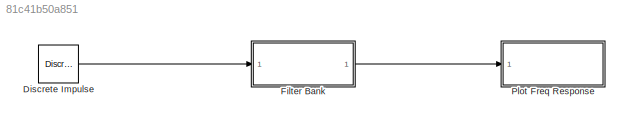
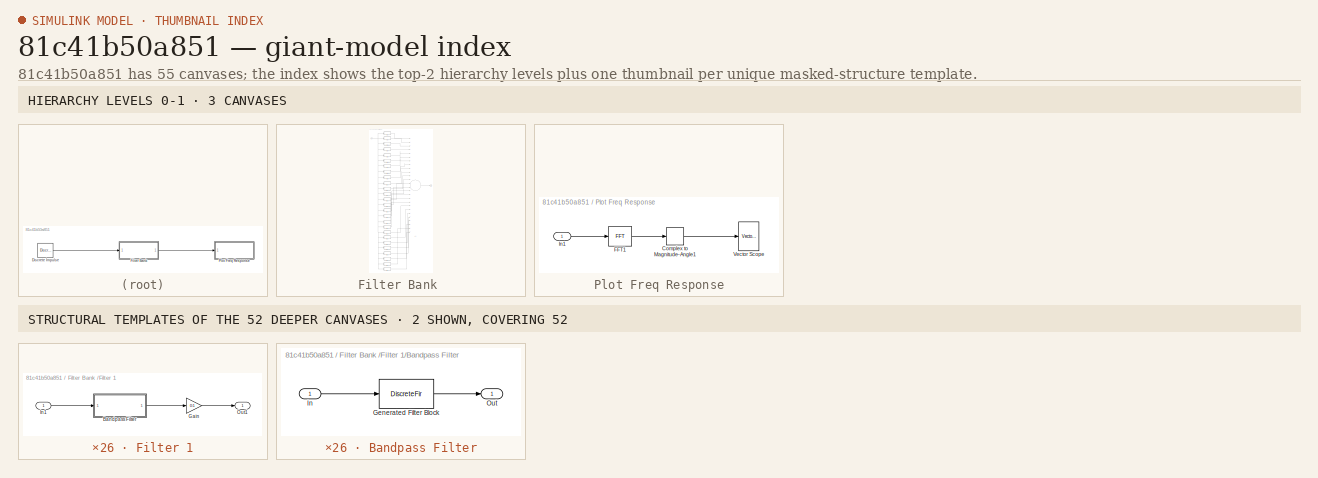
[diagram: thumbnail index - top-2 hierarchy levels (3 canvases) + 2 structural-template representatives of the remaining 52 canvases]
MODEL slx_81c41b50a851
KIND model
CONFIG AbsTol = auto
CONFIG EnableMultiTasking = off
CONFIG FixedStep = auto
CONFIG MaxStep = auto
CONFIG MinStep = auto
CONFIG RelTol = 1e-3
CONFIG SampleTimeConstraint = Unconstrained
CONFIG Solver = VariableStepAuto
CONFIG SolverName = VariableStepAuto
CONFIG StartTime = 0.0
CONFIG StopTime = 0.001
BLOCK [Reference] Discrete Impulse  REF=dspsrcs4/Discrete 
Impulse
  Ports = [0, 1]
  SourceBlock = dspsrcs4/Discrete \nImpulse
  SourceProductBaseCode = DS
  SourceProductName = DSP System Toolbox
  SourceType = Discrete Impulse
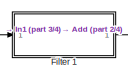
[diagram: Filter Bank  - part 1/4, top left region]
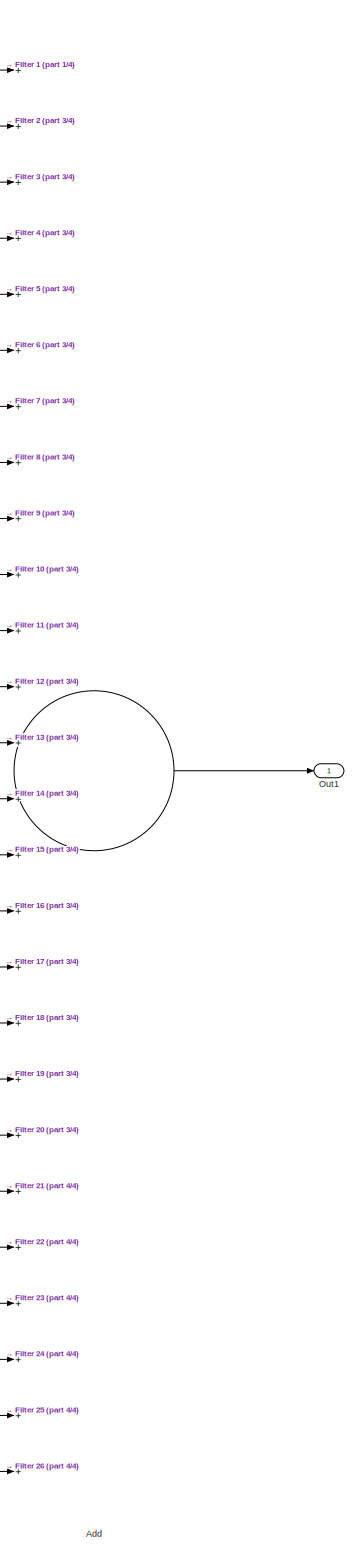
[diagram: Filter Bank  - part 2/4, middle right region]
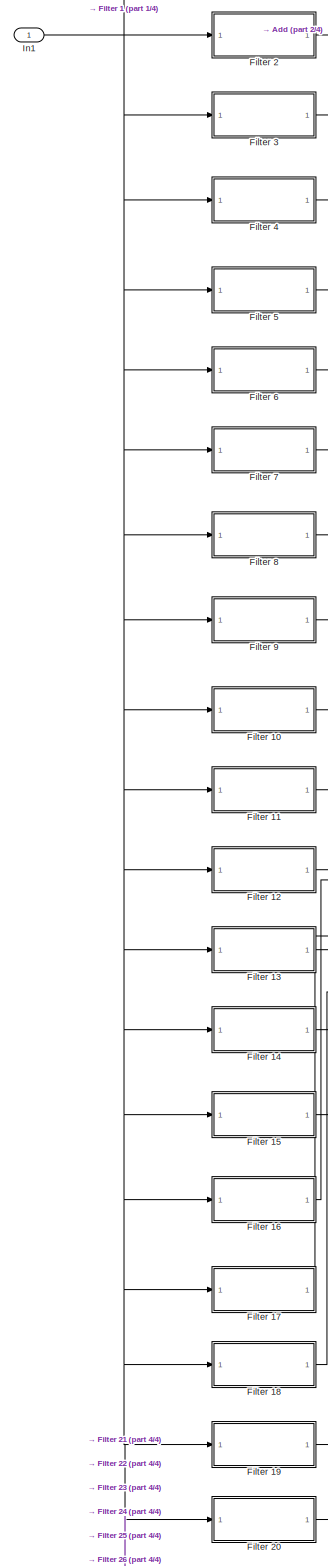
[diagram: Filter Bank  - part 3/4, left side, full height]
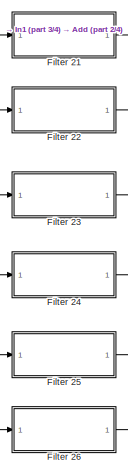
[diagram: Filter Bank  - part 4/4, bottom left region]
BLOCK [SubSystem] Filter Bank 
  Ports = [1, 1]
  RequestExecContextInheritance = off
BLOCK [Sum] Filter Bank /Add
  InputSameDT = off
  Inputs = ++++++++++++++++++++++++++
  OutDataTypeStr = Inherit: Inherit via internal rule
  Ports = [26, 1]
  SaturateOnIntegerOverflow = off
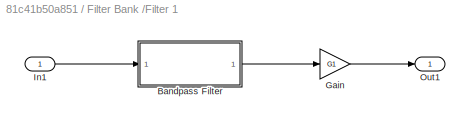
BLOCK [SubSystem] Filter Bank /Filter 1
  Ports = [1, 1]
  RequestExecContextInheritance = off
BLOCK [SubSystem] Filter Bank /Filter 1/Bandpass Filter
  CopyFcn = fdesignblkfcn(gcbh, {'CopyFcn'});
  DialogController = fdesignblkfcn
  InitFcn = fdesignblkfcn(gcbh, {'InitFcn'});
  Ports = [1, 1]
  RequestExecContextInheritance = off
  UserDataPersistent = on
BLOCK [DiscreteFir] Filter Bank /Filter 1/Bandpass Filter/Generated Filter Block
  Coefficients = [-0.0647962604943040366 0.00107831393459822955 0.00108336569226730184 0.00105909967977386998 0.00106454495764371493 0.00103988940155785858 0.00104607654880593814 0.0010205946674994304 0.00102804880577073154 0.00100100405731116948 0.00101065843472324113 0.000980517346474557572 0.000994414171233123922 0.000956754191758266148 0.00098108359285199731 0.00090624851589586608 0.0010235520260335057 0.00099...<+146477ch>
  InputPortMap = u0
  InputProcessing = Columns as channels (frame based)
  OutputPortMap = o0
  Ports = [1, 1]
  Tag = BlockMethodSubSystem
BLOCK [Inport] Filter Bank /Filter 1/Bandpass Filter/In
  IconDisplay = Port number
BLOCK [Outport] Filter Bank /Filter 1/Bandpass Filter/Out
  IconDisplay = Port number
BLOCK [Gain] Filter Bank /Filter 1/Gain
  Gain = G1
  OutDataTypeStr = Inherit: Inherit via internal rule
  ParamDataTypeStr = Inherit: Inherit via internal rule
  SaturateOnIntegerOverflow = off
BLOCK [Inport] Filter Bank /Filter 1/In1
  IconDisplay = Port number
BLOCK [Outport] Filter Bank /Filter 1/Out1
  IconDisplay = Port number
BLOCK [SubSystem] Filter Bank /Filter 10
  Ports = [1, 1]
  RequestExecContextInheritance = off
BLOCK [SubSystem] Filter Bank /Filter 10/Bandpass Filter
  CopyFcn = fdesignblkfcn(gcbh, {'CopyFcn'});
  DialogController = fdesignblkfcn
  InitFcn = fdesignblkfcn(gcbh, {'InitFcn'});
  Ports = [1, 1]
  RequestExecContextInheritance = off
  UserDataPersistent = on
BLOCK [DiscreteFir] Filter Bank /Filter 10/Bandpass Filter/Generated Filter Block
  Coefficients = [0.00662812537303859167 -0.00253108234462871753 -0.00208721062807712366 -0.00171574914897338888 -0.00140675910706401048 -0.00114798559534785957 -0.000933159914872140096 -0.000753058112247605984 -0.000604004080067758954 -0.000478861448085449789 -0.000375807632251681269 -0.000289108672916071657 -0.000218240802168969783 -0.000158451510434598415 -0.000110165299775321387 -6.92451099451374586e-05 -3.683...<+26784ch>
  InputPortMap = u0
  InputProcessing = Columns as channels (frame based)
  OutputPortMap = o0
  Ports = [1, 1]
  Tag = BlockMethodSubSystem
BLOCK [Inport] Filter Bank /Filter 10/Bandpass Filter/In
  IconDisplay = Port number
BLOCK [Outport] Filter Bank /Filter 10/Bandpass Filter/Out
  IconDisplay = Port number
BLOCK [Gain] Filter Bank /Filter 10/Gain
  Gain = G10
  OutDataTypeStr = Inherit: Inherit via internal rule
  ParamDataTypeStr = Inherit: Inherit via internal rule
  SaturateOnIntegerOverflow = off
BLOCK [Inport] Filter Bank /Filter 10/In1
  IconDisplay = Port number
BLOCK [Outport] Filter Bank /Filter 10/Out1
  IconDisplay = Port number
BLOCK [SubSystem] Filter Bank /Filter 11
  Ports = [1, 1]
  RequestExecContextInheritance = off
BLOCK [SubSystem] Filter Bank /Filter 11/Bandpass Filter
  CopyFcn = fdesignblkfcn(gcbh, {'CopyFcn'});
  DialogController = fdesignblkfcn
  InitFcn = fdesignblkfcn(gcbh, {'InitFcn'});
  Ports = [1, 1]
  RequestExecContextInheritance = off
  UserDataPersistent = on
BLOCK [DiscreteFir] Filter Bank /Filter 11/Bandpass Filter/Generated Filter Block
  Coefficients = [-0.00093292062482798054 0.00032075404477062018 0.000272040246961740531 0.000232034219203378452 0.00019895125114672508 0.00017184669813421501 0.000149402672587105128 0.000131062982912772536 0.000115827949227235863 0.000103414149419073139 9.30296784137371542e-05 8.45857051551089233e-05 7.74315258891509903e-05 7.16156197630829201e-05 6.65769299920451459e-05 6.24669752945851046e-05 5.8779583393656416...<+29784ch>
  InputPortMap = u0
  InputProcessing = Columns as channels (frame based)
  OutputPortMap = o0
  Ports = [1, 1]
  Tag = BlockMethodSubSystem
BLOCK [Inport] Filter Bank /Filter 11/Bandpass Filter/In
  IconDisplay = Port number
BLOCK [Outport] Filter Bank /Filter 11/Bandpass Filter/Out
  IconDisplay = Port number
BLOCK [Gain] Filter Bank /Filter 11/Gain
  Gain = G11
  OutDataTypeStr = Inherit: Inherit via internal rule
  ParamDataTypeStr = Inherit: Inherit via internal rule
  SaturateOnIntegerOverflow = off
BLOCK [Inport] Filter Bank /Filter 11/In1
  IconDisplay = Port number
BLOCK [Outport] Filter Bank /Filter 11/Out1
  IconDisplay = Port number
BLOCK [SubSystem] Filter Bank /Filter 12
  Ports = [1, 1]
  RequestExecContextInheritance = off
BLOCK [SubSystem] Filter Bank /Filter 12/Bandpass Filter
  CopyFcn = fdesignblkfcn(gcbh, {'CopyFcn'});
  DialogController = fdesignblkfcn
  InitFcn = fdesignblkfcn(gcbh, {'InitFcn'});
  Ports = [1, 1]
  RequestExecContextInheritance = off
  UserDataPersistent = on
BLOCK [DiscreteFir] Filter Bank /Filter 12/Bandpass Filter/Generated Filter Block
  Coefficients = [-0.000994896826821030584 0.000239932530292327187 0.000214327043605790036 0.000192082941359333252 0.000173387156278644429 0.000157074660329653473 0.000143470248161545709 0.000131498318199404184 0.000121601289344151547 0.000112754099944982261 0.000105510381244997226 9.88569377189897278e-05 9.34699899175414888e-05 8.82922242286003287e-05 8.41735456249340097e-05 7.98946022955565865e-05 7.672336675209...<+23741ch>
  InputPortMap = u0
  InputProcessing = Columns as channels (frame based)
  OutputPortMap = o0
  Ports = [1, 1]
  Tag = BlockMethodSubSystem
BLOCK [Inport] Filter Bank /Filter 12/Bandpass Filter/In
  IconDisplay = Port number
BLOCK [Outport] Filter Bank /Filter 12/Bandpass Filter/Out
  IconDisplay = Port number
BLOCK [Gain] Filter Bank /Filter 12/Gain
  Gain = G12
  OutDataTypeStr = Inherit: Inherit via internal rule
  ParamDataTypeStr = Inherit: Inherit via internal rule
  SaturateOnIntegerOverflow = off
BLOCK [Inport] Filter Bank /Filter 12/In1
  IconDisplay = Port number
BLOCK [Outport] Filter Bank /Filter 12/Out1
  IconDisplay = Port number
BLOCK [SubSystem] Filter Bank /Filter 13
  Ports = [1, 1]
  RequestExecContextInheritance = off
BLOCK [SubSystem] Filter Bank /Filter 13/Bandpass Filter
  CopyFcn = fdesignblkfcn(gcbh, {'CopyFcn'});
  DialogController = fdesignblkfcn
  InitFcn = fdesignblkfcn(gcbh, {'InitFcn'});
  Ports = [1, 1]
  RequestExecContextInheritance = off
  UserDataPersistent = on
BLOCK [DiscreteFir] Filter Bank /Filter 13/Bandpass Filter/Generated Filter Block
  Coefficients = [-0.000939212965096534081 0.000331943200575459524 0.000281941535599709837 0.000241634203706114162 0.000209372048427671718 0.000183355091055980473 0.00016256259532327228 0.000145689905445608905 0.000132135506277544432 0.000120937898929215662 0.000111778415913568044 0.000103921858679353096 9.72511051351388297e-05 9.11766280482487115e-05 8.57372722381402299e-05 8.04313825710148417e-05 7.5413795989496...<+18544ch>
  InputPortMap = u0
  InputProcessing = Columns as channels (frame based)
  OutputPortMap = o0
  Ports = [1, 1]
  Tag = BlockMethodSubSystem
BLOCK [Inport] Filter Bank /Filter 13/Bandpass Filter/In
  IconDisplay = Port number
BLOCK [Outport] Filter Bank /Filter 13/Bandpass Filter/Out
  IconDisplay = Port number
BLOCK [Gain] Filter Bank /Filter 13/Gain
  Gain = G13
  OutDataTypeStr = Inherit: Inherit via internal rule
  ParamDataTypeStr = Inherit: Inherit via internal rule
  SaturateOnIntegerOverflow = off
BLOCK [Inport] Filter Bank /Filter 13/In1
  IconDisplay = Port number
BLOCK [Outport] Filter Bank /Filter 13/Out1
  IconDisplay = Port number
BLOCK [SubSystem] Filter Bank /Filter 14
  Ports = [1, 1]
  RequestExecContextInheritance = off
BLOCK [SubSystem] Filter Bank /Filter 14/Bandpass Filter
  CopyFcn = fdesignblkfcn(gcbh, {'CopyFcn'});
  DialogController = fdesignblkfcn
  InitFcn = fdesignblkfcn(gcbh, {'InitFcn'});
  Ports = [1, 1]
  RequestExecContextInheritance = off
  UserDataPersistent = on
BLOCK [DiscreteFir] Filter Bank /Filter 14/Bandpass Filter/Generated Filter Block
  Coefficients = [-0.000796563049142607433 0.000521217576190257325 0.000387966657819314542 0.00029522229581686589 0.000230913907230613513 0.000185990987862404318 0.000154627786182951431 0.000132174964010639529 0.000115910843041266374 0.00010338477184866785 9.34200538852475519e-05 8.46648375026802177e-05 7.67472341318199588e-05 6.88760134097405311e-05 6.1089580690962096e-05 5.28749289039233468e-05 4.451669049485290...<+14626ch>
  InputPortMap = u0
  InputProcessing = Columns as channels (frame based)
  OutputPortMap = o0
  Ports = [1, 1]
  Tag = BlockMethodSubSystem
BLOCK [Inport] Filter Bank /Filter 14/Bandpass Filter/In
  IconDisplay = Port number
BLOCK [Outport] Filter Bank /Filter 14/Bandpass Filter/Out
  IconDisplay = Port number
BLOCK [Gain] Filter Bank /Filter 14/Gain
  Gain = G14
  OutDataTypeStr = Inherit: Inherit via internal rule
  ParamDataTypeStr = Inherit: Inherit via internal rule
  SaturateOnIntegerOverflow = off
BLOCK [Inport] Filter Bank /Filter 14/In1
  IconDisplay = Port number
BLOCK [Outport] Filter Bank /Filter 14/Out1
  IconDisplay = Port number
BLOCK [SubSystem] Filter Bank /Filter 15
  Ports = [1, 1]
  RequestExecContextInheritance = off
BLOCK [SubSystem] Filter Bank /Filter 15/Bandpass Filter
  CopyFcn = fdesignblkfcn(gcbh, {'CopyFcn'});
  DialogController = fdesignblkfcn
  InitFcn = fdesignblkfcn(gcbh, {'InitFcn'});
  Ports = [1, 1]
  RequestExecContextInheritance = off
  UserDataPersistent = on
BLOCK [DiscreteFir] Filter Bank /Filter 15/Bandpass Filter/Generated Filter Block
  Coefficients = [-0.000698386457350122893 0.000656119851486957045 0.000438122822402756725 0.000306381322080387039 0.000226762706170714903 0.000177938315392148775 0.00014725881210852964 0.00012656056306894006 0.000111309473037591615 9.83607501023254816e-05 8.62947851337754284e-05 7.39297666057303285e-05 6.10770278967111844e-05 4.73325597273725309e-05 3.30448667498076524e-05 1.81449216715462101e-05 3.20629125220359...<+11483ch>
  InputPortMap = u0
  InputProcessing = Columns as channels (frame based)
  OutputPortMap = o0
  Ports = [1, 1]
  Tag = BlockMethodSubSystem
BLOCK [Inport] Filter Bank /Filter 15/Bandpass Filter/In
  IconDisplay = Port number
BLOCK [Outport] Filter Bank /Filter 15/Bandpass Filter/Out
  IconDisplay = Port number
BLOCK [Gain] Filter Bank /Filter 15/Gain
  Gain = G15
  OutDataTypeStr = Inherit: Inherit via internal rule
  ParamDataTypeStr = Inherit: Inherit via internal rule
  SaturateOnIntegerOverflow = off
BLOCK [Inport] Filter Bank /Filter 15/In1
  IconDisplay = Port number
BLOCK [Outport] Filter Bank /Filter 15/Out1
  IconDisplay = Port number
BLOCK [SubSystem] Filter Bank /Filter 16
  Ports = [1, 1]
  RequestExecContextInheritance = off
BLOCK [SubSystem] Filter Bank /Filter 16/Bandpass Filter
  CopyFcn = fdesignblkfcn(gcbh, {'CopyFcn'});
  DialogController = fdesignblkfcn
  InitFcn = fdesignblkfcn(gcbh, {'InitFcn'});
  Ports = [1, 1]
  RequestExecContextInheritance = off
  UserDataPersistent = on
BLOCK [DiscreteFir] Filter Bank /Filter 16/Bandpass Filter/Generated Filter Block
  Coefficients = [-0.000770201486469539653 0.000585533734717331739 0.000426902016948514586 0.000325419733573418884 0.000260252640802087053 0.000216949390707870055 0.00018661956105854474 0.000162808027098879961 0.000142039090698539445 0.000121553042907130478 0.000100500481427267738 7.79153038233042043e-05 5.42941856223762807e-05 2.9553485953015329e-05 4.89353760050139676e-06 -1.94277404575236672e-05 -4.189009872324...<+8977ch>
  InputPortMap = u0
  InputProcessing = Columns as channels (frame based)
  OutputPortMap = o0
  Ports = [1, 1]
  Tag = BlockMethodSubSystem
BLOCK [Inport] Filter Bank /Filter 16/Bandpass Filter/In
  IconDisplay = Port number
BLOCK [Outport] Filter Bank /Filter 16/Bandpass Filter/Out
  IconDisplay = Port number
BLOCK [Gain] Filter Bank /Filter 16/Gain
  Gain = G16
  OutDataTypeStr = Inherit: Inherit via internal rule
  ParamDataTypeStr = Inherit: Inherit via internal rule
  SaturateOnIntegerOverflow = off
BLOCK [Inport] Filter Bank /Filter 16/In1
  IconDisplay = Port number
BLOCK [Outport] Filter Bank /Filter 16/Out1
  IconDisplay = Port number
BLOCK [SubSystem] Filter Bank /Filter 17
  Ports = [1, 1]
  RequestExecContextInheritance = off
BLOCK [SubSystem] Filter Bank /Filter 17/Bandpass Filter
  CopyFcn = fdesignblkfcn(gcbh, {'CopyFcn'});
  DialogController = fdesignblkfcn
  InitFcn = fdesignblkfcn(gcbh, {'InitFcn'});
  Ports = [1, 1]
  RequestExecContextInheritance = off
  UserDataPersistent = on
BLOCK [DiscreteFir] Filter Bank /Filter 17/Bandpass Filter/Generated Filter Block
  Coefficients = [-0.00071045389428722283 0.000673643562003335607 0.000466409678671305121 0.000346720595334707327 0.000275807519841958959 0.000229748763430457248 0.000194874940031942876 0.000162881980115000256 0.000129997998471966452 9.43540208841241672e-05 5.64091445603046056e-05 1.70235687865036373e-05 -2.15187594677777899e-05 -5.73853735605480076e-05 -8.80871317711339472e-05 -0.00011206056519069105 -0.000127482...<+7091ch>
  InputPortMap = u0
  InputProcessing = Columns as channels (frame based)
  OutputPortMap = o0
  Ports = [1, 1]
  Tag = BlockMethodSubSystem
BLOCK [Inport] Filter Bank /Filter 17/Bandpass Filter/In
  IconDisplay = Port number
BLOCK [Outport] Filter Bank /Filter 17/Bandpass Filter/Out
  IconDisplay = Port number
BLOCK [Gain] Filter Bank /Filter 17/Gain
  Gain = G17
  OutDataTypeStr = Inherit: Inherit via internal rule
  ParamDataTypeStr = Inherit: Inherit via internal rule
  SaturateOnIntegerOverflow = off
BLOCK [Inport] Filter Bank /Filter 17/In1
  IconDisplay = Port number
BLOCK [Outport] Filter Bank /Filter 17/Out1
  IconDisplay = Port number
BLOCK [SubSystem] Filter Bank /Filter 18
  Ports = [1, 1]
  RequestExecContextInheritance = off
BLOCK [SubSystem] Filter Bank /Filter 18/Bandpass Filter
  CopyFcn = fdesignblkfcn(gcbh, {'CopyFcn'});
  DialogController = fdesignblkfcn
  InitFcn = fdesignblkfcn(gcbh, {'InitFcn'});
  Ports = [1, 1]
  RequestExecContextInheritance = off
  UserDataPersistent = on
BLOCK [DiscreteFir] Filter Bank /Filter 18/Bandpass Filter/Generated Filter Block
  Coefficients = [-0.000641522880549480392 0.000765027821195267757 0.000503401644732371983 0.000369617709804862709 0.000294192978222871607 0.000240950237741584857 0.000191002807752522433 0.000137072758386999269 7.73087101858605311e-05 1.46887287242895761e-05 -4.65710452723659598e-05 -0.00010047073627567505 -0.00014237798439844249 -0.000167800101491722862 -0.000175254620006763716 -0.000164458759086268808 -0.0001388...<+5563ch>
  InputPortMap = u0
  InputProcessing = Columns as channels (frame based)
  OutputPortMap = o0
  Ports = [1, 1]
  Tag = BlockMethodSubSystem
BLOCK [Inport] Filter Bank /Filter 18/Bandpass Filter/In
  IconDisplay = Port number
BLOCK [Outport] Filter Bank /Filter 18/Bandpass Filter/Out
  IconDisplay = Port number
BLOCK [Gain] Filter Bank /Filter 18/Gain
  Gain = G18
  OutDataTypeStr = Inherit: Inherit via internal rule
  ParamDataTypeStr = Inherit: Inherit via internal rule
  SaturateOnIntegerOverflow = off
BLOCK [Inport] Filter Bank /Filter 18/In1
  IconDisplay = Port number
BLOCK [Outport] Filter Bank /Filter 18/Out1
  IconDisplay = Port number
BLOCK [SubSystem] Filter Bank /Filter 19
  Ports = [1, 1]
  RequestExecContextInheritance = off
BLOCK [SubSystem] Filter Bank /Filter 19/Bandpass Filter
  CopyFcn = fdesignblkfcn(gcbh, {'CopyFcn'});
  DialogController = fdesignblkfcn
  InitFcn = fdesignblkfcn(gcbh, {'InitFcn'});
  Ports = [1, 1]
  RequestExecContextInheritance = off
  UserDataPersistent = on
BLOCK [DiscreteFir] Filter Bank /Filter 19/Bandpass Filter/Generated Filter Block
  Coefficients = [-0.000574349634410801601 0.000848848267787120849 0.000537770168749360103 0.000392957044169066068 0.000304713692806979071 0.00022408264866388236 0.000134580368809321491 3.71273746896969587e-05 -5.77445964988061949e-05 -0.000136476039359190724 -0.000186752906989625999 -0.000201610776883531806 -0.000181288656928675862 -0.000134182366954404007 -7.55840787121783903e-05 -2.46775536605261217e-05 8.28509...<+4269ch>
  InputPortMap = u0
  InputProcessing = Columns as channels (frame based)
  OutputPortMap = o0
  Ports = [1, 1]
  Tag = BlockMethodSubSystem
BLOCK [Inport] Filter Bank /Filter 19/Bandpass Filter/In
  IconDisplay = Port number
BLOCK [Outport] Filter Bank /Filter 19/Bandpass Filter/Out
  IconDisplay = Port number
BLOCK [Gain] Filter Bank /Filter 19/Gain
  Gain = G19
  OutDataTypeStr = Inherit: Inherit via internal rule
  ParamDataTypeStr = Inherit: Inherit via internal rule
  SaturateOnIntegerOverflow = off
BLOCK [Inport] Filter Bank /Filter 19/In1
  IconDisplay = Port number
BLOCK [Outport] Filter Bank /Filter 19/Out1
  IconDisplay = Port number
BLOCK [SubSystem] Filter Bank /Filter 2
  Ports = [1, 1]
  RequestExecContextInheritance = off
BLOCK [SubSystem] Filter Bank /Filter 2/Bandpass Filter
  CopyFcn = fdesignblkfcn(gcbh, {'CopyFcn'});
  DialogController = fdesignblkfcn
  InitFcn = fdesignblkfcn(gcbh, {'InitFcn'});
  Ports = [1, 1]
  RequestExecContextInheritance = off
  UserDataPersistent = on
BLOCK [DiscreteFir] Filter Bank /Filter 2/Bandpass Filter/Generated Filter Block
  Coefficients = [0.00928931134447032007 3.22936367430837396e-05 3.20437712359077971e-05 3.23307075705921688e-05 3.20125256880089088e-05 3.2369509252863384e-05 3.1981777862719533e-05 3.24103819313836987e-05 3.19509581241328797e-05 3.24532140755053448e-05 3.19195447165192294e-05 3.24978764755389947e-05 3.18869435438188611e-05 3.25443428543120241e-05 3.18524581172667501e-05 3.25928622578394383e-05 3.1815278809827512...<+193641ch>
  InputPortMap = u0
  InputProcessing = Columns as channels (frame based)
  OutputPortMap = o0
  Ports = [1, 1]
  Tag = BlockMethodSubSystem
BLOCK [Inport] Filter Bank /Filter 2/Bandpass Filter/In
  IconDisplay = Port number
BLOCK [Outport] Filter Bank /Filter 2/Bandpass Filter/Out
  IconDisplay = Port number
BLOCK [Gain] Filter Bank /Filter 2/Gain
  Gain = G2
  OutDataTypeStr = Inherit: Inherit via internal rule
  ParamDataTypeStr = Inherit: Inherit via internal rule
  SaturateOnIntegerOverflow = off
BLOCK [Inport] Filter Bank /Filter 2/In1
  IconDisplay = Port number
BLOCK [Outport] Filter Bank /Filter 2/Out1
  IconDisplay = Port number
BLOCK [SubSystem] Filter Bank /Filter 20
  Ports = [1, 1]
  RequestExecContextInheritance = off
BLOCK [SubSystem] Filter Bank /Filter 20/Bandpass Filter
  CopyFcn = fdesignblkfcn(gcbh, {'CopyFcn'});
  DialogController = fdesignblkfcn
  InitFcn = fdesignblkfcn(gcbh, {'InitFcn'});
  Ports = [1, 1]
  RequestExecContextInheritance = off
  UserDataPersistent = on
BLOCK [DiscreteFir] Filter Bank /Filter 20/Bandpass Filter/Generated Filter Block
  Coefficients = [-0.000414244565274154281 0.0010393934069961796 0.000564099335072018181 0.000385126773420874232 0.000254700512267632241 0.000109161985362023699 -4.51475910282118993e-05 -0.000177110057581592181 -0.00025494430200438781 -0.000261380716492251456 -0.000202662868010231419 -0.00010901264862133483 -2.54705698038804657e-05 2.93672623264400259e-06 -5.08826817709512972e-05 -0.000181084612834095729 -0.000343...<+3317ch>
  InputPortMap = u0
  InputProcessing = Columns as channels (frame based)
  OutputPortMap = o0
  Ports = [1, 1]
  Tag = BlockMethodSubSystem
BLOCK [Inport] Filter Bank /Filter 20/Bandpass Filter/In
  IconDisplay = Port number
BLOCK [Outport] Filter Bank /Filter 20/Bandpass Filter/Out
  IconDisplay = Port number
BLOCK [Gain] Filter Bank /Filter 20/Gain
  Gain = G20
  OutDataTypeStr = Inherit: Inherit via internal rule
  ParamDataTypeStr = Inherit: Inherit via internal rule
  SaturateOnIntegerOverflow = off
BLOCK [Inport] Filter Bank /Filter 20/In1
  IconDisplay = Port number
BLOCK [Outport] Filter Bank /Filter 20/Out1
  IconDisplay = Port number
BLOCK [SubSystem] Filter Bank /Filter 21
  Ports = [1, 1]
  RequestExecContextInheritance = off
BLOCK [SubSystem] Filter Bank /Filter 21/Bandpass Filter
  CopyFcn = fdesignblkfcn(gcbh, {'CopyFcn'});
  DialogController = fdesignblkfcn
  InitFcn = fdesignblkfcn(gcbh, {'InitFcn'});
  Ports = [1, 1]
  RequestExecContextInheritance = off
  UserDataPersistent = on
BLOCK [DiscreteFir] Filter Bank /Filter 21/Bandpass Filter/Generated Filter Block
  Coefficients = [-0.000630889922755398279 -0.000287202050226645724 -0.000127797085957152118 0.000189420030965501199 0.000581669638888316427 0.000905017432967061548 0.00100060379404128181 0.000759276024814657191 0.000181284962417803527 -0.000597658771275291507 -0.00133068542894205556 -0.00173539790342549832 -0.00159818365004636112 -0.000870724637082128717 0.000282958060505120266 0.00151555270884253359 0.0024023784...<+3271ch>
  InputPortMap = u0
  InputProcessing = Columns as channels (frame based)
  OutputPortMap = o0
  Ports = [1, 1]
  Tag = BlockMethodSubSystem
BLOCK [Inport] Filter Bank /Filter 21/Bandpass Filter/In
  IconDisplay = Port number
BLOCK [Outport] Filter Bank /Filter 21/Bandpass Filter/Out
  IconDisplay = Port number
BLOCK [Gain] Filter Bank /Filter 21/Gain
  Gain = G21
  OutDataTypeStr = Inherit: Inherit via internal rule
  ParamDataTypeStr = Inherit: Inherit via internal rule
  SaturateOnIntegerOverflow = off
BLOCK [Inport] Filter Bank /Filter 21/In1
  IconDisplay = Port number
BLOCK [Outport] Filter Bank /Filter 21/Out1
  IconDisplay = Port number
BLOCK [SubSystem] Filter Bank /Filter 22
  Ports = [1, 1]
  RequestExecContextInheritance = off
BLOCK [SubSystem] Filter Bank /Filter 22/Bandpass Filter
  CopyFcn = fdesignblkfcn(gcbh, {'CopyFcn'});
  DialogController = fdesignblkfcn
  InitFcn = fdesignblkfcn(gcbh, {'InitFcn'});
  Ports = [1, 1]
  RequestExecContextInheritance = off
  UserDataPersistent = on
BLOCK [DiscreteFir] Filter Bank /Filter 22/Bandpass Filter/Generated Filter Block
  Coefficients = [-0.000682788605977459871 -0.000373145526102940908 -2.65787240490563358e-05 0.000581109296948711398 0.00114564061539708904 0.00126552370019650078 0.000687194255066143466 -0.00047384141884688276 -0.0016937292514042487 -0.00226269276137588786 -0.00168407014805588826 -3.25799581640540882e-05 0.00197004858525688751 0.00326432171640604184 0.00302636885652626374 0.0011872238739836778 -0.0014302139555070...<+2509ch>
  InputPortMap = u0
  InputProcessing = Columns as channels (frame based)
  OutputPortMap = o0
  Ports = [1, 1]
  Tag = BlockMethodSubSystem
BLOCK [Inport] Filter Bank /Filter 22/Bandpass Filter/In
  IconDisplay = Port number
BLOCK [Outport] Filter Bank /Filter 22/Bandpass Filter/Out
  IconDisplay = Port number
BLOCK [Gain] Filter Bank /Filter 22/Gain
  Gain = G22
  OutDataTypeStr = Inherit: Inherit via internal rule
  ParamDataTypeStr = Inherit: Inherit via internal rule
  SaturateOnIntegerOverflow = off
BLOCK [Inport] Filter Bank /Filter 22/In1
  IconDisplay = Port number
BLOCK [Outport] Filter Bank /Filter 22/Out1
  IconDisplay = Port number
BLOCK [SubSystem] Filter Bank /Filter 23
  Ports = [1, 1]
  RequestExecContextInheritance = off
BLOCK [SubSystem] Filter Bank /Filter 23/Bandpass Filter
  CopyFcn = fdesignblkfcn(gcbh, {'CopyFcn'});
  DialogController = fdesignblkfcn
  InitFcn = fdesignblkfcn(gcbh, {'InitFcn'});
  Ports = [1, 1]
  RequestExecContextInheritance = off
  UserDataPersistent = on
BLOCK [DiscreteFir] Filter Bank /Filter 23/Bandpass Filter/Generated Filter Block
  Coefficients = [-0.000716430523736778335 -0.000160451558611486426 0.000641659841011484565 0.00142882729434123143 0.00127375706078411443 -0.000168979969381222845 -0.00202921353491519957 -0.00265518499955576465 -0.00104327228334028486 0.00195792711000970137 0.00397136197380558702 0.00301023016654118711 -0.000577129144709578748 -0.00405594818827060069 -0.00450812492702345677 -0.00146576342682566457 0.00253395137635...<+1873ch>
  InputPortMap = u0
  InputProcessing = Columns as channels (frame based)
  OutputPortMap = o0
  Ports = [1, 1]
  Tag = BlockMethodSubSystem
BLOCK [Inport] Filter Bank /Filter 23/Bandpass Filter/In
  IconDisplay = Port number
BLOCK [Outport] Filter Bank /Filter 23/Bandpass Filter/Out
  IconDisplay = Port number
BLOCK [Gain] Filter Bank /Filter 23/Gain
  Gain = G23
  OutDataTypeStr = Inherit: Inherit via internal rule
  ParamDataTypeStr = Inherit: Inherit via internal rule
  SaturateOnIntegerOverflow = off
BLOCK [Inport] Filter Bank /Filter 23/In1
  IconDisplay = Port number
BLOCK [Outport] Filter Bank /Filter 23/Out1
  IconDisplay = Port number
BLOCK [SubSystem] Filter Bank /Filter 24
  Ports = [1, 1]
  RequestExecContextInheritance = off
BLOCK [SubSystem] Filter Bank /Filter 24/Bandpass Filter
  CopyFcn = fdesignblkfcn(gcbh, {'CopyFcn'});
  DialogController = fdesignblkfcn
  InitFcn = fdesignblkfcn(gcbh, {'InitFcn'});
  Ports = [1, 1]
  RequestExecContextInheritance = off
  UserDataPersistent = on
BLOCK [DiscreteFir] Filter Bank /Filter 24/Bandpass Filter/Generated Filter Block
  Coefficients = [-0.000875292102203880837 -0.00028888302850272441 0.0012030456099249257 0.00206506038781072241 0.000361419430388190937 -0.00275291148986745761 -0.00328325738599163182 0.000600800677443908446 0.00495093625623187379 0.00398535329030866477 -0.00213091825005458629 -0.00630773529458734245 -0.00321132829831289766 0.00339967016853479813 0.00541042388986196898 0.00132949350349928714 -0.0022067530149368955...<+1427ch>
  InputPortMap = u0
  InputProcessing = Columns as channels (frame based)
  OutputPortMap = o0
  Ports = [1, 1]
  Tag = BlockMethodSubSystem
BLOCK [Inport] Filter Bank /Filter 24/Bandpass Filter/In
  IconDisplay = Port number
BLOCK [Outport] Filter Bank /Filter 24/Bandpass Filter/Out
  IconDisplay = Port number
BLOCK [Gain] Filter Bank /Filter 24/Gain
  Gain = G24
  OutDataTypeStr = Inherit: Inherit via internal rule
  ParamDataTypeStr = Inherit: Inherit via internal rule
  SaturateOnIntegerOverflow = off
BLOCK [Inport] Filter Bank /Filter 24/In1
  IconDisplay = Port number
BLOCK [Outport] Filter Bank /Filter 24/Out1
  IconDisplay = Port number
BLOCK [SubSystem] Filter Bank /Filter 25
  Ports = [1, 1]
  RequestExecContextInheritance = off
BLOCK [SubSystem] Filter Bank /Filter 25/Bandpass Filter
  CopyFcn = fdesignblkfcn(gcbh, {'CopyFcn'});
  DialogController = fdesignblkfcn
  InitFcn = fdesignblkfcn(gcbh, {'InitFcn'});
  Ports = [1, 1]
  RequestExecContextInheritance = off
  UserDataPersistent = on
BLOCK [DiscreteFir] Filter Bank /Filter 25/Bandpass Filter/Generated Filter Block
  Coefficients = [-0.00113793300432106764 -0.000113607397750166149 0.00244581311772932696 0.00142026149931120363 -0.00363333301823734293 -0.00353527617176660307 0.00417487754968334616 0.00632836654632306077 -0.00301051743998384004 -0.00807217890026135955 0.000697997637565085476 0.00735827537143241266 0.00131464207116708696 -0.00308048367755291543 5.3107154121523193e-05 -0.00354308378511903948 -0.007521202762972687...<+1056ch>
  InputPortMap = u0
  InputProcessing = Columns as channels (frame based)
  OutputPortMap = o0
  Ports = [1, 1]
  Tag = BlockMethodSubSystem
BLOCK [Inport] Filter Bank /Filter 25/Bandpass Filter/In
  IconDisplay = Port number
BLOCK [Outport] Filter Bank /Filter 25/Bandpass Filter/Out
  IconDisplay = Port number
BLOCK [Gain] Filter Bank /Filter 25/Gain
  Gain = G25
  OutDataTypeStr = Inherit: Inherit via internal rule
  ParamDataTypeStr = Inherit: Inherit via internal rule
  SaturateOnIntegerOverflow = off
BLOCK [Inport] Filter Bank /Filter 25/In1
  IconDisplay = Port number
BLOCK [Outport] Filter Bank /Filter 25/Out1
  IconDisplay = Port number
BLOCK [SubSystem] Filter Bank /Filter 26
  Ports = [1, 1]
  RequestExecContextInheritance = off
BLOCK [SubSystem] Filter Bank /Filter 26/Bandpass Filter
  CopyFcn = fdesignblkfcn(gcbh, {'CopyFcn'});
  DialogController = fdesignblkfcn
  InitFcn = fdesignblkfcn(gcbh, {'InitFcn'});
  Ports = [1, 1]
  RequestExecContextInheritance = off
  UserDataPersistent = on
BLOCK [DiscreteFir] Filter Bank /Filter 26/Bandpass Filter/Generated Filter Block
  Coefficients = [-0.00136962085792105277 0.000287790270183060611 0.00355146143414578367 -0.00308870112421412739 -0.00469602086771360189 0.00751752107771166272 0.0028735161209192334 -0.0107640042330087969 0.00178532213745352056 0.00829467454553088276 -0.0034192538047483536 -0.000451187325981200395 -0.00569910964406946351 -0.00430603002304427978 0.0276413922150641894 -0.00766400679201761567 -0.0516565490145923581 0...<+751ch>
  InputPortMap = u0
  InputProcessing = Columns as channels (frame based)
  OutputPortMap = o0
  Ports = [1, 1]
  Tag = BlockMethodSubSystem
BLOCK [Inport] Filter Bank /Filter 26/Bandpass Filter/In
  IconDisplay = Port number
BLOCK [Outport] Filter Bank /Filter 26/Bandpass Filter/Out
  IconDisplay = Port number
BLOCK [Gain] Filter Bank /Filter 26/Gain
  Gain = G26
  OutDataTypeStr = Inherit: Inherit via internal rule
  ParamDataTypeStr = Inherit: Inherit via internal rule
  SaturateOnIntegerOverflow = off
BLOCK [Inport] Filter Bank /Filter 26/In1
  IconDisplay = Port number
BLOCK [Outport] Filter Bank /Filter 26/Out1
  IconDisplay = Port number
BLOCK [SubSystem] Filter Bank /Filter 3
  Ports = [1, 1]
  RequestExecContextInheritance = off
BLOCK [SubSystem] Filter Bank /Filter 3/Bandpass Filter
  CopyFcn = fdesignblkfcn(gcbh, {'CopyFcn'});
  DialogController = fdesignblkfcn
  InitFcn = fdesignblkfcn(gcbh, {'InitFcn'});
  Ports = [1, 1]
  RequestExecContextInheritance = off
  UserDataPersistent = on
BLOCK [DiscreteFir] Filter Bank /Filter 3/Bandpass Filter/Generated Filter Block
  Coefficients = [0.00822214245458513862 -0.000891392196185967936 -0.000842263487572094023 -0.000796200848228199539 -0.000752147492250270812 -0.000710945388897663575 -0.000671434197973750616 -0.000634592300265772978 -0.000599145534531165353 -0.000566215576769264956 -0.000534404020923255683 -0.000504983559213464136 -0.000476421012809910723 -0.000450149038767330711 -0.000424487610917955631 -0.000401040961202464867 -...<+137869ch>
  InputPortMap = u0
  InputProcessing = Columns as channels (frame based)
  OutputPortMap = o0
  Ports = [1, 1]
  Tag = BlockMethodSubSystem
BLOCK [Inport] Filter Bank /Filter 3/Bandpass Filter/In
  IconDisplay = Port number
BLOCK [Outport] Filter Bank /Filter 3/Bandpass Filter/Out
  IconDisplay = Port number
BLOCK [Gain] Filter Bank /Filter 3/Gain
  Gain = G3
  OutDataTypeStr = Inherit: Inherit via internal rule
  ParamDataTypeStr = Inherit: Inherit via internal rule
  SaturateOnIntegerOverflow = off
BLOCK [Inport] Filter Bank /Filter 3/In1
  IconDisplay = Port number
BLOCK [Outport] Filter Bank /Filter 3/Out1
  IconDisplay = Port number
BLOCK [SubSystem] Filter Bank /Filter 4
  Ports = [1, 1]
  RequestExecContextInheritance = off
BLOCK [SubSystem] Filter Bank /Filter 4/Bandpass Filter
  CopyFcn = fdesignblkfcn(gcbh, {'CopyFcn'});
  DialogController = fdesignblkfcn
  InitFcn = fdesignblkfcn(gcbh, {'InitFcn'});
  Ports = [1, 1]
  RequestExecContextInheritance = off
  UserDataPersistent = on
BLOCK [DiscreteFir] Filter Bank /Filter 4/Bandpass Filter/Generated Filter Block
  Coefficients = [-0.00796725083634587314 2.97706031108144176e-05 3.01976495215329352e-05 2.96389700691372719e-05 3.00878584049760562e-05 2.94977648401729788e-05 2.99726380993387558e-05 2.93467747168973706e-05 2.98522862938588573e-05 2.91860738363696438e-05 2.97276580646291984e-05 2.90142830280137762e-05 2.95991161984999821e-05 2.88300777102201999e-05 2.9466239447079669e-05 2.86335884919909053e-05 2.93305925571617...<+107072ch>
  InputPortMap = u0
  InputProcessing = Columns as channels (frame based)
  OutputPortMap = o0
  Ports = [1, 1]
  Tag = BlockMethodSubSystem
BLOCK [Inport] Filter Bank /Filter 4/Bandpass Filter/In
  IconDisplay = Port number
BLOCK [Outport] Filter Bank /Filter 4/Bandpass Filter/Out
  IconDisplay = Port number
BLOCK [Gain] Filter Bank /Filter 4/Gain1
  Gain = G4
  OutDataTypeStr = Inherit: Inherit via internal rule
  ParamDataTypeStr = Inherit: Inherit via internal rule
  SaturateOnIntegerOverflow = off
BLOCK [Inport] Filter Bank /Filter 4/In1
  IconDisplay = Port number
BLOCK [Outport] Filter Bank /Filter 4/Out1
  IconDisplay = Port number
BLOCK [SubSystem] Filter Bank /Filter 5
  Ports = [1, 1]
  RequestExecContextInheritance = off
BLOCK [SubSystem] Filter Bank /Filter 5/Bandpass Filter
  CopyFcn = fdesignblkfcn(gcbh, {'CopyFcn'});
  DialogController = fdesignblkfcn
  InitFcn = fdesignblkfcn(gcbh, {'InitFcn'});
  Ports = [1, 1]
  RequestExecContextInheritance = off
  UserDataPersistent = on
BLOCK [DiscreteFir] Filter Bank /Filter 5/Bandpass Filter/Generated Filter Block
  Coefficients = [0.00809639227565171586 -0.000723315488847038461 -0.000691764700002920415 -0.000661395552927465267 -0.000632404307428324915 -0.000604551890397716759 -0.00057791080024074406 -0.000552368528921909872 -0.00052788456277133675 -0.000504465193842159069 -0.000481961052188058551 -0.000460492244867361043 -0.000439804774489987787 -0.000420128968409762943 -0.00040110995673789824 -0.000383077768176978955 -0.0...<+87376ch>
  InputPortMap = u0
  InputProcessing = Columns as channels (frame based)
  OutputPortMap = o0
  Ports = [1, 1]
  Tag = BlockMethodSubSystem
BLOCK [Inport] Filter Bank /Filter 5/Bandpass Filter/In
  IconDisplay = Port number
BLOCK [Outport] Filter Bank /Filter 5/Bandpass Filter/Out
  IconDisplay = Port number
BLOCK [Gain] Filter Bank /Filter 5/Gain
  Gain = G5
  OutDataTypeStr = Inherit: Inherit via internal rule
  ParamDataTypeStr = Inherit: Inherit via internal rule
  SaturateOnIntegerOverflow = off
BLOCK [Inport] Filter Bank /Filter 5/In1
  IconDisplay = Port number
BLOCK [Outport] Filter Bank /Filter 5/Out1
  IconDisplay = Port number
BLOCK [SubSystem] Filter Bank /Filter 6
  Ports = [1, 1]
  RequestExecContextInheritance = off
BLOCK [SubSystem] Filter Bank /Filter 6/Bandpass Filter
  CopyFcn = fdesignblkfcn(gcbh, {'CopyFcn'});
  DialogController = fdesignblkfcn
  InitFcn = fdesignblkfcn(gcbh, {'InitFcn'});
  Ports = [1, 1]
  RequestExecContextInheritance = off
  UserDataPersistent = on
BLOCK [DiscreteFir] Filter Bank /Filter 6/Bandpass Filter/Generated Filter Block
  Coefficients = [0.00765693098860125831 -0.000991229895598604548 -0.000928127688480159113 -0.00087031098068920433 -0.000814375361558617242 -0.000763336970597638595 -0.000713734308933091505 -0.000668717346783602798 -0.000624694566923886599 -0.000585036326252560274 -0.000545913457837863408 -0.000511055011210083052 -0.000476192064484548191 -0.000445713273035748883 -0.000414398541328213008 -0.000388300586387271482 -0...<+68267ch>
  InputPortMap = u0
  InputProcessing = Columns as channels (frame based)
  OutputPortMap = o0
  Ports = [1, 1]
  Tag = BlockMethodSubSystem
BLOCK [Inport] Filter Bank /Filter 6/Bandpass Filter/In
  IconDisplay = Port number
BLOCK [Outport] Filter Bank /Filter 6/Bandpass Filter/Out
  IconDisplay = Port number
BLOCK [Gain] Filter Bank /Filter 6/Gain
  Gain = G6
  OutDataTypeStr = Inherit: Inherit via internal rule
  ParamDataTypeStr = Inherit: Inherit via internal rule
  SaturateOnIntegerOverflow = off
BLOCK [Inport] Filter Bank /Filter 6/In1
  IconDisplay = Port number
BLOCK [Outport] Filter Bank /Filter 6/Out1
  IconDisplay = Port number
BLOCK [SubSystem] Filter Bank /Filter 7
  Ports = [1, 1]
  RequestExecContextInheritance = off
BLOCK [SubSystem] Filter Bank /Filter 7/Bandpass Filter
  CopyFcn = fdesignblkfcn(gcbh, {'CopyFcn'});
  DialogController = fdesignblkfcn
  InitFcn = fdesignblkfcn(gcbh, {'InitFcn'});
  Ports = [1, 1]
  RequestExecContextInheritance = off
  UserDataPersistent = on
BLOCK [DiscreteFir] Filter Bank /Filter 7/Bandpass Filter/Generated Filter Block
  Coefficients = [0.00828612661815246627 -0.000607746387040100644 -0.000589419033263859429 -0.000564163349213400722 -0.000547230689475536672 -0.000523310115851906982 -0.000507694831901286947 -0.000485021439467136703 -0.000470656798822787284 -0.000449141555108747287 -0.000435964442650794981 -0.000415507147665432688 -0.000403484729138803982 -0.000383956062271307436 -0.000373137084530112892 -0.000354154577339440765 -...<+56119ch>
  InputPortMap = u0
  InputProcessing = Columns as channels (frame based)
  OutputPortMap = o0
  Ports = [1, 1]
  Tag = BlockMethodSubSystem
BLOCK [Inport] Filter Bank /Filter 7/Bandpass Filter/In
  IconDisplay = Port number
BLOCK [Outport] Filter Bank /Filter 7/Bandpass Filter/Out
  IconDisplay = Port number
BLOCK [Gain] Filter Bank /Filter 7/Gain
  Gain = G7
  OutDataTypeStr = Inherit: Inherit via internal rule
  ParamDataTypeStr = Inherit: Inherit via internal rule
  SaturateOnIntegerOverflow = off
BLOCK [Inport] Filter Bank /Filter 7/In1
  IconDisplay = Port number
BLOCK [Outport] Filter Bank /Filter 7/Out1
  IconDisplay = Port number
BLOCK [SubSystem] Filter Bank /Filter 8
  Ports = [1, 1]
  RequestExecContextInheritance = off
BLOCK [SubSystem] Filter Bank /Filter 8/Bandpass Filter
  CopyFcn = fdesignblkfcn(gcbh, {'CopyFcn'});
  DialogController = fdesignblkfcn
  InitFcn = fdesignblkfcn(gcbh, {'InitFcn'});
  Ports = [1, 1]
  RequestExecContextInheritance = off
  UserDataPersistent = on
BLOCK [DiscreteFir] Filter Bank /Filter 8/Bandpass Filter/Generated Filter Block
  Coefficients = [0.00681821598473487944 -0.00218684425578030217 -0.00186137896439147674 -0.00158248226156926697 -0.00134358261699310815 -0.00113887699422956915 -0.00096357022705336338 -0.000813370266181527883 -0.000684784898814343071 -0.00057463083304579892 -0.000480368804305687216 -0.000399636639973276176 -0.000330605856753749851 -0.000271508508616365011 -0.000221027741200999906 -0.000177833740709251113 -0.00014...<+43052ch>
  InputPortMap = u0
  InputProcessing = Columns as channels (frame based)
  OutputPortMap = o0
  Ports = [1, 1]
  Tag = BlockMethodSubSystem
BLOCK [Inport] Filter Bank /Filter 8/Bandpass Filter/In
  IconDisplay = Port number
BLOCK [Outport] Filter Bank /Filter 8/Bandpass Filter/Out
  IconDisplay = Port number
BLOCK [Gain] Filter Bank /Filter 8/Gain
  Gain = G8
  OutDataTypeStr = Inherit: Inherit via internal rule
  ParamDataTypeStr = Inherit: Inherit via internal rule
  SaturateOnIntegerOverflow = off
BLOCK [Inport] Filter Bank /Filter 8/In1
  IconDisplay = Port number
BLOCK [Outport] Filter Bank /Filter 8/Out1
  IconDisplay = Port number
BLOCK [SubSystem] Filter Bank /Filter 9
  Ports = [1, 1]
  RequestExecContextInheritance = off
BLOCK [SubSystem] Filter Bank /Filter 9/Bandpass Filter
  CopyFcn = fdesignblkfcn(gcbh, {'CopyFcn'});
  DialogController = fdesignblkfcn
  InitFcn = fdesignblkfcn(gcbh, {'InitFcn'});
  Ports = [1, 1]
  RequestExecContextInheritance = off
  UserDataPersistent = on
BLOCK [DiscreteFir] Filter Bank /Filter 9/Bandpass Filter/Generated Filter Block
  Coefficients = [0.00677944627356840638 -0.00247532840159036096 -0.00206041283903102886 -0.00171251238594449123 -0.00142067447778393245 -0.00117603109033302287 -0.00097083446627734926 -0.000798909380665577392 -0.000654714609912612636 -0.0005339825140599178 -0.000432749673984084973 -0.000348086701979546649 -0.000277139086184299257 -0.00021790270749806495 -0.000168295744549433934 -0.000127007202587600747 -9.2461224...<+33714ch>
  InputPortMap = u0
  InputProcessing = Columns as channels (frame based)
  OutputPortMap = o0
  Ports = [1, 1]
  Tag = BlockMethodSubSystem
BLOCK [Inport] Filter Bank /Filter 9/Bandpass Filter/In
  IconDisplay = Port number
BLOCK [Outport] Filter Bank /Filter 9/Bandpass Filter/Out
  IconDisplay = Port number
BLOCK [Gain] Filter Bank /Filter 9/Gain
  Gain = G9
  OutDataTypeStr = Inherit: Inherit via internal rule
  ParamDataTypeStr = Inherit: Inherit via internal rule
  SaturateOnIntegerOverflow = off
BLOCK [Inport] Filter Bank /Filter 9/In1
  IconDisplay = Port number
BLOCK [Outport] Filter Bank /Filter 9/Out1
  IconDisplay = Port number
BLOCK [Inport] Filter Bank /In1
  IconDisplay = Port number
BLOCK [Outport] Filter Bank /Out1
  IconDisplay = Port number
BLOCK [SubSystem] Plot Freq Response
  Ports = [1]
  RequestExecContextInheritance = off
BLOCK [ComplexToMagnitudeAngle] Plot Freq Response/Complex to Magnitude-Angle1
  Output = Magnitude
  Ports = [1, 1]
BLOCK [Reference] Plot Freq Response/FFT1  REF=dspxfrm3/FFT
  Ports = [1, 1]
  SourceBlock = dspxfrm3/FFT
  SourceProductBaseCode = DS
  SourceProductName = DSP System Toolbox
  SourceType = FFT
BLOCK [Inport] Plot Freq Response/In1
  IconDisplay = Port number
BLOCK [Reference] Plot Freq Response/Vector Scope  REF=dspobslib/Vector
Scope
  Ports = [1]
  SourceBlock = dspobslib/Vector\nScope
  SourceProductBaseCode = DS
  SourceProductName = DSP System Toolbox
  SourceType = Vector Scope
LINE Discrete Impulse:1 -> Filter Bank :1
LINE Filter Bank /Add:1 -> Filter Bank /Out1:1
LINE Filter Bank /Filter 1/Bandpass Filter:1 -> Filter Bank /Filter 1/Gain:1
LINE Filter Bank /Filter 1/Gain:1 -> Filter Bank /Filter 1/Out1:1
LINE Filter Bank /Filter 1/In1:1 -> Filter Bank /Filter 1/Bandpass Filter:1
LINE Filter Bank /Filter 10/Bandpass Filter:1 -> Filter Bank /Filter 10/Gain:1
LINE Filter Bank /Filter 10/Gain:1 -> Filter Bank /Filter 10/Out1:1
LINE Filter Bank /Filter 10/In1:1 -> Filter Bank /Filter 10/Bandpass Filter:1
LINE Filter Bank /Filter 10:1 -> Filter Bank /Add:10
LINE Filter Bank /Filter 11/Bandpass Filter:1 -> Filter Bank /Filter 11/Gain:1
LINE Filter Bank /Filter 11/Gain:1 -> Filter Bank /Filter 11/Out1:1
LINE Filter Bank /Filter 11/In1:1 -> Filter Bank /Filter 11/Bandpass Filter:1
LINE Filter Bank /Filter 11:1 -> Filter Bank /Add:11
LINE Filter Bank /Filter 12/Bandpass Filter:1 -> Filter Bank /Filter 12/Gain:1
LINE Filter Bank /Filter 12/Gain:1 -> Filter Bank /Filter 12/Out1:1
LINE Filter Bank /Filter 12/In1:1 -> Filter Bank /Filter 12/Bandpass Filter:1
LINE Filter Bank /Filter 12:1 -> Filter Bank /Add:12
LINE Filter Bank /Filter 13/Bandpass Filter:1 -> Filter Bank /Filter 13/Gain:1
LINE Filter Bank /Filter 13/Gain:1 -> Filter Bank /Filter 13/Out1:1
LINE Filter Bank /Filter 13/In1:1 -> Filter Bank /Filter 13/Bandpass Filter:1
LINE Filter Bank /Filter 13:1 -> Filter Bank /Add:13
LINE Filter Bank /Filter 14/Bandpass Filter:1 -> Filter Bank /Filter 14/Gain:1
LINE Filter Bank /Filter 14/Gain:1 -> Filter Bank /Filter 14/Out1:1
LINE Filter Bank /Filter 14/In1:1 -> Filter Bank /Filter 14/Bandpass Filter:1
LINE Filter Bank /Filter 14:1 -> Filter Bank /Add:14
LINE Filter Bank /Filter 15/Bandpass Filter:1 -> Filter Bank /Filter 15/Gain:1
LINE Filter Bank /Filter 15/Gain:1 -> Filter Bank /Filter 15/Out1:1
LINE Filter Bank /Filter 15/In1:1 -> Filter Bank /Filter 15/Bandpass Filter:1
LINE Filter Bank /Filter 15:1 -> Filter Bank /Add:15
LINE Filter Bank /Filter 16/Bandpass Filter:1 -> Filter Bank /Filter 16/Gain:1
LINE Filter Bank /Filter 16/Gain:1 -> Filter Bank /Filter 16/Out1:1
LINE Filter Bank /Filter 16/In1:1 -> Filter Bank /Filter 16/Bandpass Filter:1
LINE Filter Bank /Filter 16:1 -> Filter Bank /Add:16
LINE Filter Bank /Filter 17/Bandpass Filter:1 -> Filter Bank /Filter 17/Gain:1
LINE Filter Bank /Filter 17/Gain:1 -> Filter Bank /Filter 17/Out1:1
LINE Filter Bank /Filter 17/In1:1 -> Filter Bank /Filter 17/Bandpass Filter:1
LINE Filter Bank /Filter 17:1 -> Filter Bank /Add:17
LINE Filter Bank /Filter 18/Bandpass Filter:1 -> Filter Bank /Filter 18/Gain:1
LINE Filter Bank /Filter 18/Gain:1 -> Filter Bank /Filter 18/Out1:1
LINE Filter Bank /Filter 18/In1:1 -> Filter Bank /Filter 18/Bandpass Filter:1
LINE Filter Bank /Filter 18:1 -> Filter Bank /Add:18
LINE Filter Bank /Filter 19/Bandpass Filter:1 -> Filter Bank /Filter 19/Gain:1
LINE Filter Bank /Filter 19/Gain:1 -> Filter Bank /Filter 19/Out1:1
LINE Filter Bank /Filter 19/In1:1 -> Filter Bank /Filter 19/Bandpass Filter:1
LINE Filter Bank /Filter 19:1 -> Filter Bank /Add:19
LINE Filter Bank /Filter 1:1 -> Filter Bank /Add:1
LINE Filter Bank /Filter 2/Bandpass Filter:1 -> Filter Bank /Filter 2/Gain:1
LINE Filter Bank /Filter 2/Gain:1 -> Filter Bank /Filter 2/Out1:1
LINE Filter Bank /Filter 2/In1:1 -> Filter Bank /Filter 2/Bandpass Filter:1
LINE Filter Bank /Filter 20/Bandpass Filter:1 -> Filter Bank /Filter 20/Gain:1
LINE Filter Bank /Filter 20/Gain:1 -> Filter Bank /Filter 20/Out1:1
LINE Filter Bank /Filter 20/In1:1 -> Filter Bank /Filter 20/Bandpass Filter:1
LINE Filter Bank /Filter 20:1 -> Filter Bank /Add:20
LINE Filter Bank /Filter 21/Bandpass Filter:1 -> Filter Bank /Filter 21/Gain:1
LINE Filter Bank /Filter 21/Gain:1 -> Filter Bank /Filter 21/Out1:1
LINE Filter Bank /Filter 21/In1:1 -> Filter Bank /Filter 21/Bandpass Filter:1
LINE Filter Bank /Filter 21:1 -> Filter Bank /Add:21
LINE Filter Bank /Filter 22/Bandpass Filter:1 -> Filter Bank /Filter 22/Gain:1
LINE Filter Bank /Filter 22/Gain:1 -> Filter Bank /Filter 22/Out1:1
LINE Filter Bank /Filter 22/In1:1 -> Filter Bank /Filter 22/Bandpass Filter:1
LINE Filter Bank /Filter 22:1 -> Filter Bank /Add:22
LINE Filter Bank /Filter 23/Bandpass Filter:1 -> Filter Bank /Filter 23/Gain:1
LINE Filter Bank /Filter 23/Gain:1 -> Filter Bank /Filter 23/Out1:1
LINE Filter Bank /Filter 23/In1:1 -> Filter Bank /Filter 23/Bandpass Filter:1
LINE Filter Bank /Filter 23:1 -> Filter Bank /Add:23
LINE Filter Bank /Filter 24/Bandpass Filter:1 -> Filter Bank /Filter 24/Gain:1
LINE Filter Bank /Filter 24/Gain:1 -> Filter Bank /Filter 24/Out1:1
LINE Filter Bank /Filter 24/In1:1 -> Filter Bank /Filter 24/Bandpass Filter:1
LINE Filter Bank /Filter 24:1 -> Filter Bank /Add:24
LINE Filter Bank /Filter 25/Bandpass Filter:1 -> Filter Bank /Filter 25/Gain:1
LINE Filter Bank /Filter 25/Gain:1 -> Filter Bank /Filter 25/Out1:1
LINE Filter Bank /Filter 25/In1:1 -> Filter Bank /Filter 25/Bandpass Filter:1
LINE Filter Bank /Filter 25:1 -> Filter Bank /Add:25
LINE Filter Bank /Filter 26/Bandpass Filter:1 -> Filter Bank /Filter 26/Gain:1
LINE Filter Bank /Filter 26/Gain:1 -> Filter Bank /Filter 26/Out1:1
LINE Filter Bank /Filter 26/In1:1 -> Filter Bank /Filter 26/Bandpass Filter:1
LINE Filter Bank /Filter 26:1 -> Filter Bank /Add:26
LINE Filter Bank /Filter 2:1 -> Filter Bank /Add:2
LINE Filter Bank /Filter 3/Bandpass Filter:1 -> Filter Bank /Filter 3/Gain:1
LINE Filter Bank /Filter 3/Gain:1 -> Filter Bank /Filter 3/Out1:1
LINE Filter Bank /Filter 3/In1:1 -> Filter Bank /Filter 3/Bandpass Filter:1
LINE Filter Bank /Filter 3:1 -> Filter Bank /Add:3
LINE Filter Bank /Filter 4/Bandpass Filter:1 -> Filter Bank /Filter 4/Gain1:1
LINE Filter Bank /Filter 4/Gain1:1 -> Filter Bank /Filter 4/Out1:1
LINE Filter Bank /Filter 4/In1:1 -> Filter Bank /Filter 4/Bandpass Filter:1
LINE Filter Bank /Filter 4:1 -> Filter Bank /Add:4
LINE Filter Bank /Filter 5/Bandpass Filter:1 -> Filter Bank /Filter 5/Gain:1
LINE Filter Bank /Filter 5/Gain:1 -> Filter Bank /Filter 5/Out1:1
LINE Filter Bank /Filter 5/In1:1 -> Filter Bank /Filter 5/Bandpass Filter:1
LINE Filter Bank /Filter 5:1 -> Filter Bank /Add:5
LINE Filter Bank /Filter 6/Bandpass Filter:1 -> Filter Bank /Filter 6/Gain:1
LINE Filter Bank /Filter 6/Gain:1 -> Filter Bank /Filter 6/Out1:1
LINE Filter Bank /Filter 6/In1:1 -> Filter Bank /Filter 6/Bandpass Filter:1
LINE Filter Bank /Filter 6:1 -> Filter Bank /Add:6
LINE Filter Bank /Filter 7/Bandpass Filter:1 -> Filter Bank /Filter 7/Gain:1
LINE Filter Bank /Filter 7/Gain:1 -> Filter Bank /Filter 7/Out1:1
LINE Filter Bank /Filter 7/In1:1 -> Filter Bank /Filter 7/Bandpass Filter:1
LINE Filter Bank /Filter 7:1 -> Filter Bank /Add:7
LINE Filter Bank /Filter 8/Bandpass Filter:1 -> Filter Bank /Filter 8/Gain:1
LINE Filter Bank /Filter 8/Gain:1 -> Filter Bank /Filter 8/Out1:1
LINE Filter Bank /Filter 8/In1:1 -> Filter Bank /Filter 8/Bandpass Filter:1
LINE Filter Bank /Filter 8:1 -> Filter Bank /Add:8
LINE Filter Bank /Filter 9/Bandpass Filter:1 -> Filter Bank /Filter 9/Gain:1
LINE Filter Bank /Filter 9/Gain:1 -> Filter Bank /Filter 9/Out1:1
LINE Filter Bank /Filter 9/In1:1 -> Filter Bank /Filter 9/Bandpass Filter:1
LINE Filter Bank /Filter 9:1 -> Filter Bank /Add:9
NET Filter Bank /In1:1 -> Filter Bank /Filter 10:1, Filter Bank /Filter 11:1, Filter Bank /Filter 12:1, Filter Bank /Filter 13:1, Filter Bank /Filter 14:1, Filter Bank /Filter 15:1, Filter Bank /Filter 16:1, Filter Bank /Filter 17:1, Filter Bank /Filter 18:1, Filter Bank /Filter 19:1, Filter Bank /Filter 1:1, Filter Bank /Filter 20:1, Filter Bank /Filter 21:1, Filter Bank /Filter 22:1, Filter Bank /Filter 23:1, Filter Bank /Filter 24:1, Filter Bank /Filter 25:1, Filter Bank /Filter 26:1, Filter Bank /Filter 2:1, Filter Bank /Filter 3:1, Filter Bank /Filter 4:1, Filter Bank /Filter 5:1, Filter Bank /Filter 6:1, Filter Bank /Filter 7:1, Filter Bank /Filter 8:1, Filter Bank /Filter 9:1
LINE Filter Bank :1 -> Plot Freq Response:1
LINE Plot Freq Response/Complex to Magnitude-Angle1:1 -> Plot Freq Response/Vector Scope:1
LINE Plot Freq Response/FFT1:1 -> Plot Freq Response/Complex to Magnitude-Angle1:1
LINE Plot Freq Response/In1:1 -> Plot Freq Response/FFT1:1
note: NET lines group one-source signal fan-out (src -> all destinations, sorted); 1:1 wires keep LINE
